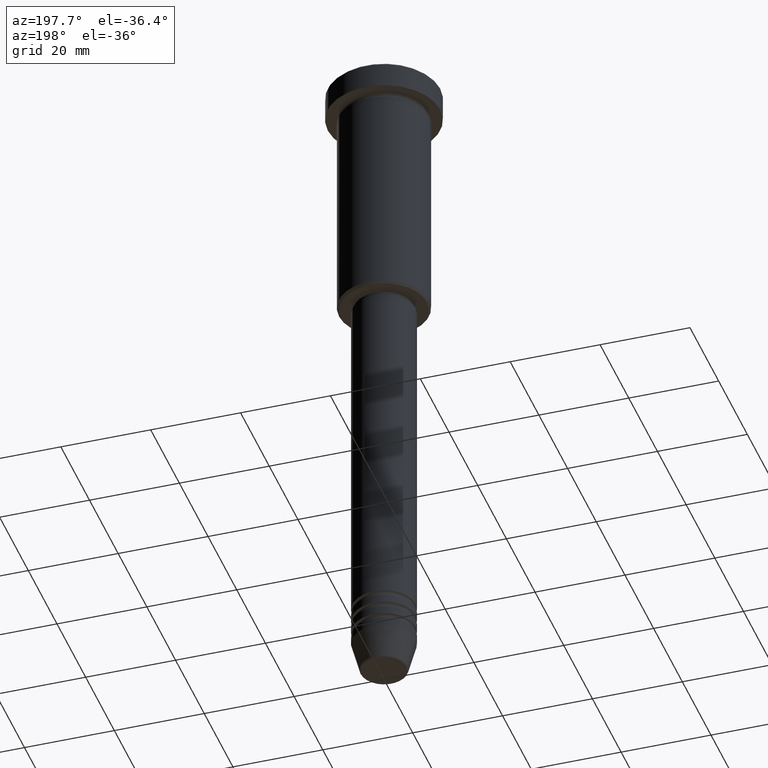
[diagram: clean part render]
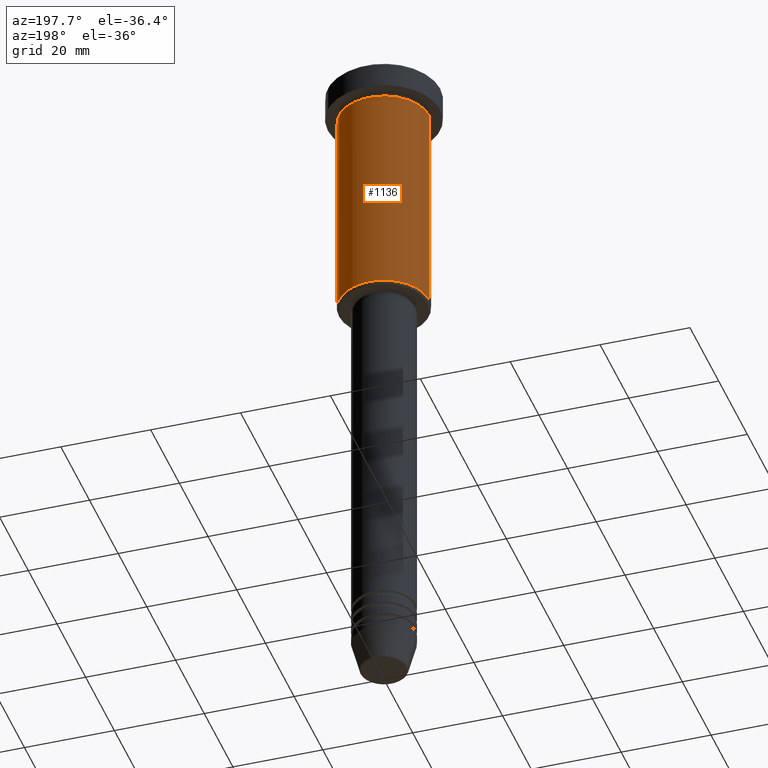
[diagram: same view with one face highlighted and labeled with its STEP entity id]
A machine part, auxiliary view. The second image highlights one B-rep face of the part: STEP entity #1136.
In plain terms, the highlighted cylindrical surface (partial cylindrical patch) has radius 10 mm, axis along (-0, -0, 1).
Its self-contained STEP definition (entity closure, byte-faithful):
#12 = AXIS2_PLACEMENT_3D ( 'NONE', #422, #419, #685 ) ;
#40 = CARTESIAN_POINT ( 'NONE',  ( 10.00000000000000000, 0.000000000000000000, -55.49999999999995026 ) ) ;
#41 = DIRECTION ( 'NONE',  ( -0.000000000000000000, -0.000000000000000000, 1.000000000000000000 ) ) ;
#70 = VECTOR ( 'NONE', #524, 1000.000000000000000 ) ;
#86 = CYLINDRICAL_SURFACE ( 'NONE', #279, 10.00000000000000000 ) ;
#152 = CARTESIAN_POINT ( 'NONE',  ( 10.00000000000000000, 0.000000000000000000, 0.000000000000000000 ) ) ;
#160 = EDGE_CURVE ( 'NONE', #869, #730, #596, .T. ) ;
#164 = CARTESIAN_POINT ( 'NONE',  ( -10.00000000000000000, 1.224646799147353256E-15, -6.999999999999996447 ) ) ;
#171 = VERTEX_POINT ( 'NONE', #164 ) ;
#206 = DIRECTION ( 'NONE',  ( -0.000000000000000000, -0.000000000000000000, 1.000000000000000000 ) ) ;
#279 = AXIS2_PLACEMENT_3D ( 'NONE', #986, #444, #803 ) ;
#302 = DIRECTION ( 'NONE',  ( 1.000000000000000000, 0.000000000000000000, 0.000000000000000000 ) ) ;
#378 = CIRCLE ( 'NONE', #12, 10.00000000000000000 ) ;
#384 = CARTESIAN_POINT ( 'NONE',  ( -10.00000000000000000, 1.224646799147353256E-15, -55.49999999999995026 ) ) ;
#403 = CARTESIAN_POINT ( 'NONE',  ( -10.00000000000000000, 1.224646799147353256E-15, 0.000000000000000000 ) ) ;
#419 = DIRECTION ( 'NONE',  ( -0.000000000000000000, -0.000000000000000000, 1.000000000000000000 ) ) ;
#422 = CARTESIAN_POINT ( 'NONE',  ( 0.000000000000000000, 0.000000000000000000, -55.49999999999995026 ) ) ;
#444 = DIRECTION ( 'NONE',  ( -0.000000000000000000, -0.000000000000000000, 1.000000000000000000 ) ) ;
#448 = CIRCLE ( 'NONE', #950, 10.00000000000000000 ) ;
#477 = EDGE_CURVE ( 'NONE', #730, #171, #448, .T. ) ;
#524 = DIRECTION ( 'NONE',  ( -0.000000000000000000, -0.000000000000000000, 1.000000000000000000 ) ) ;
#525 = EDGE_CURVE ( 'NONE', #737, #171, #925, .T. ) ;
#533 = FACE_OUTER_BOUND ( 'NONE', #995, .T. ) ;
#541 = ORIENTED_EDGE ( 'NONE', *, *, #997, .T. ) ;
#562 = CARTESIAN_POINT ( 'NONE',  ( 10.00000000000000000, 0.000000000000000000, -6.999999999999996447 ) ) ;
#596 = LINE ( 'NONE', #152, #70 ) ;
#685 = DIRECTION ( 'NONE',  ( -1.000000000000000000, 0.000000000000000000, 0.000000000000000000 ) ) ;
#730 = VERTEX_POINT ( 'NONE', #562 ) ;
#737 = VERTEX_POINT ( 'NONE', #384 ) ;
#741 = CARTESIAN_POINT ( 'NONE',  ( 0.000000000000000000, 0.000000000000000000, -6.999999999999996447 ) ) ;
#777 = ORIENTED_EDGE ( 'NONE', *, *, #525, .T. ) ;
#797 = ORIENTED_EDGE ( 'NONE', *, *, #160, .F. ) ;
#803 = DIRECTION ( 'NONE',  ( 1.000000000000000000, 0.000000000000000000, 0.000000000000000000 ) ) ;
#869 = VERTEX_POINT ( 'NONE', #40 ) ;
#898 = VECTOR ( 'NONE', #206, 1000.000000000000000 ) ;
#925 = LINE ( 'NONE', #403, #898 ) ;
#950 = AXIS2_PLACEMENT_3D ( 'NONE', #741, #41, #302 ) ;
#985 = ORIENTED_EDGE ( 'NONE', *, *, #477, .F. ) ;
#986 = CARTESIAN_POINT ( 'NONE',  ( 0.000000000000000000, 0.000000000000000000, 0.000000000000000000 ) ) ;
#995 = EDGE_LOOP ( 'NONE', ( #541, #777, #985, #797 ) ) ;
#997 = EDGE_CURVE ( 'NONE', #869, #737, #378, .T. ) ;
#1136 = ADVANCED_FACE ( 'NONE', ( #533 ), #86, .T. ) ;